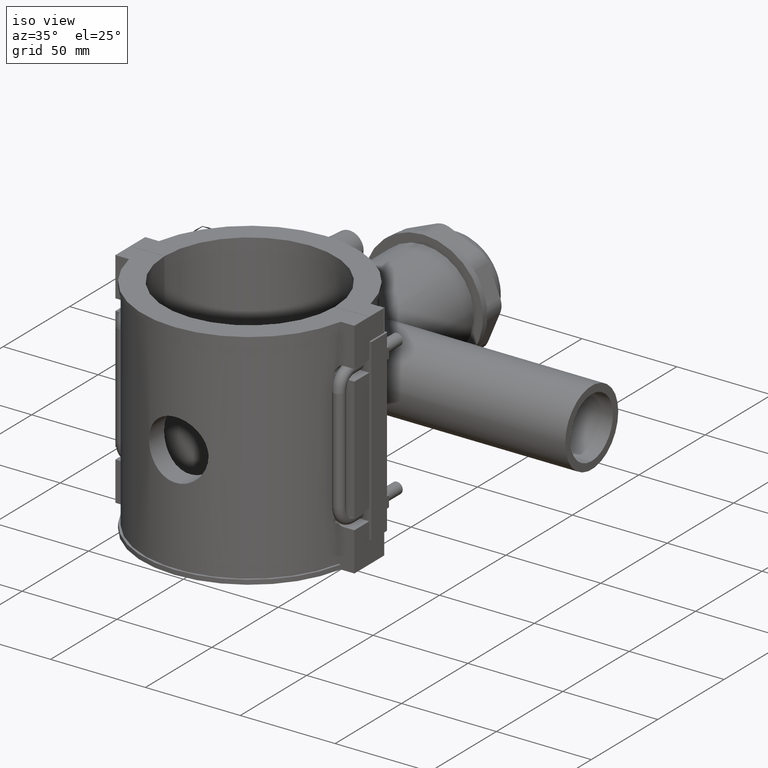
[diagram: clean part render]
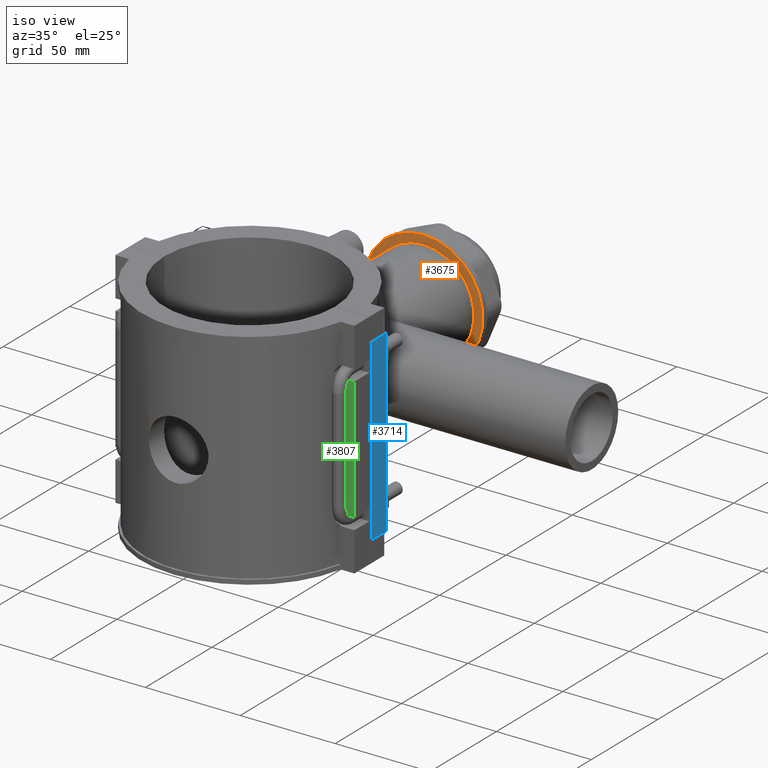
[diagram: same view with three faces highlighted in distinct colors, each labeled with its STEP entity id]
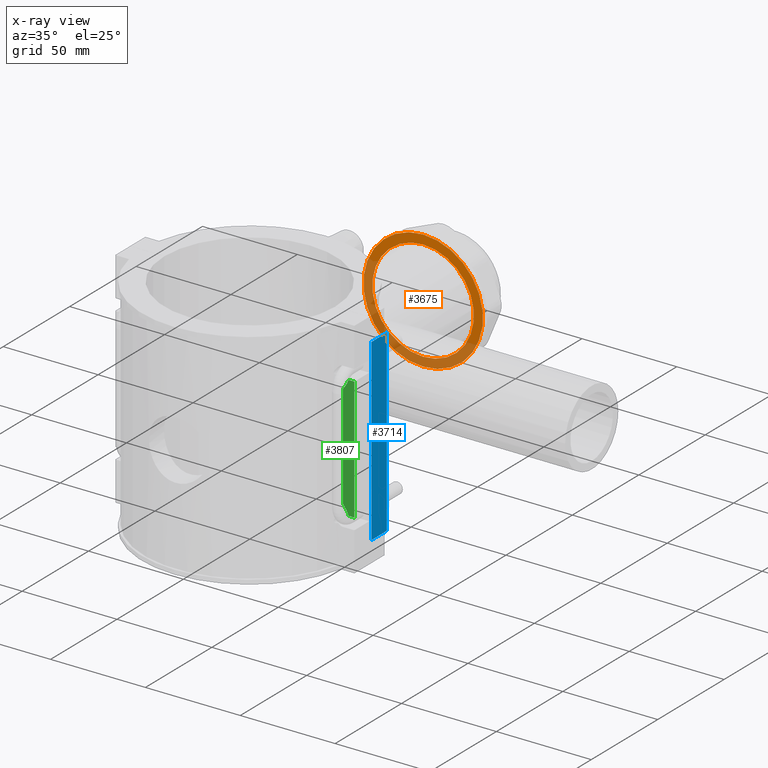
[diagram: x-ray of the same camera — body ghosted, the three highlighted faces saturated]
A machine part, iso view with three faces highlighted in distinct colors.
The next image is the same camera in x-ray (body ghosted, the three faces saturated) — at least one of them is partly hidden behind the body in this view.
Their STEP definitions:

[orange] entity #3675 — the highlighted planar face has unit normal (0, -1, -0).
#685=PLANE('',#3923);
#819=CIRCLE('',#3922,26.775);
#820=CIRCLE('',#3924,31.5);
#913=FACE_BOUND('',#1254,.T.);
#1021=FACE_OUTER_BOUND('',#1253,.T.);
#1253=EDGE_LOOP('',(#2758));
#1254=EDGE_LOOP('',(#2759));
#1666=VERTEX_POINT('',#6152);
#1667=VERTEX_POINT('',#6155);
#2077=EDGE_CURVE('',#1666,#1666,#819,.T.);
#2078=EDGE_CURVE('',#1667,#1667,#820,.T.);
#2758=ORIENTED_EDGE('',*,*,#2078,.F.);
#2759=ORIENTED_EDGE('',*,*,#2077,.T.);
#3675=ADVANCED_FACE('',(#1021,#913),#685,.T.);
#3922=AXIS2_PLACEMENT_3D('',#6153,#4400,#4401);
#3923=AXIS2_PLACEMENT_3D('',#6154,#4402,#4403);
#3924=AXIS2_PLACEMENT_3D('',#6156,#4404,#4405);
#4400=DIRECTION('center_axis',(0.,1.,3.06161699786838E-16));
#4401=DIRECTION('ref_axis',(1.,0.,0.));
#4402=DIRECTION('center_axis',(0.,-1.,-3.06161699786838E-16));
#4403=DIRECTION('ref_axis',(0.,0.,-1.));
#4404=DIRECTION('center_axis',(0.,1.,3.06161699786838E-16));
#4405=DIRECTION('ref_axis',(1.,0.,0.));
#6152=CARTESIAN_POINT('',(0.,130.5,26.775));
#6153=CARTESIAN_POINT('Origin',(0.,130.5,2.61768253317747E-14));
#6154=CARTESIAN_POINT('Origin',(0.,130.5,31.5));
#6155=CARTESIAN_POINT('',(0.,130.5,31.5));
#6156=CARTESIAN_POINT('Origin',(0.,130.5,2.61768253317747E-14));

[blue] entity #3714 — the highlighted planar face has unit normal (1, 0, 0).
#199=LINE('',#7184,#498);
#215=LINE('',#7255,#514);
#218=LINE('',#7261,#517);
#219=LINE('',#7262,#518);
#498=VECTOR('',#4604,94.4);
#514=VECTOR('',#4630,11.7000000000001);
#517=VECTOR('',#4635,11.7000000000001);
#518=VECTOR('',#4636,94.4);
#708=PLANE('',#3984);
#1060=FACE_OUTER_BOUND('',#1303,.T.);
#1303=EDGE_LOOP('',(#2998,#2999,#3000,#3001));
#1773=VERTEX_POINT('',#7181);
#1774=VERTEX_POINT('',#7183);
#1792=VERTEX_POINT('',#7254);
#1794=VERTEX_POINT('',#7260);
#2215=EDGE_CURVE('',#1773,#1774,#199,.T.);
#2238=EDGE_CURVE('',#1774,#1792,#215,.T.);
#2241=EDGE_CURVE('',#1794,#1773,#218,.T.);
#2242=EDGE_CURVE('',#1792,#1794,#219,.T.);
#2998=ORIENTED_EDGE('',*,*,#2215,.F.);
#2999=ORIENTED_EDGE('',*,*,#2241,.F.);
#3000=ORIENTED_EDGE('',*,*,#2242,.F.);
#3001=ORIENTED_EDGE('',*,*,#2238,.F.);
#3714=ADVANCED_FACE('',(#1060),#708,.T.);
#3984=AXIS2_PLACEMENT_3D('',#7259,#4633,#4634);
#4604=DIRECTION('',(0.,0.,-1.));
#4630=DIRECTION('',(0.,-1.,0.));
#4633=DIRECTION('center_axis',(1.,0.,0.));
#4634=DIRECTION('ref_axis',(0.,1.,0.));
#4635=DIRECTION('',(0.,1.,0.));
#4636=DIRECTION('',(0.,0.,1.));
#7181=CARTESIAN_POINT('',(64.,11.7500000000001,47.2));
#7183=CARTESIAN_POINT('',(64.,11.7500000000001,-47.2));
#7184=CARTESIAN_POINT('',(64.,11.7500000000001,0.));
#7254=CARTESIAN_POINT('',(64.,0.0500000000000078,-47.2));
#7255=CARTESIAN_POINT('',(64.,0.0500000000000078,-47.2));
#7259=CARTESIAN_POINT('Origin',(64.,0.0500000000000081,0.));
#7260=CARTESIAN_POINT('',(64.,0.0500000000000078,47.2));
#7261=CARTESIAN_POINT('',(64.,0.0500000000000078,47.2));
#7262=CARTESIAN_POINT('',(64.,0.0500000000000081,0.));

[green] entity #3807 — the highlighted planar face has unit normal (0, -1, 0).
#302=LINE('',#7995,#601);
#311=LINE('',#8045,#610);
#312=LINE('',#8047,#611);
#313=LINE('',#8048,#612);
#601=VECTOR('',#4977,54.7999999999999);
#610=VECTOR('',#5016,3.14744237747101);
#611=VECTOR('',#5017,64.8);
#612=VECTOR('',#5018,3.14744237747098);
#761=PLANE('',#4128);
#1153=FACE_OUTER_BOUND('',#1424,.T.);
#1424=EDGE_LOOP('',(#3398,#3399,#3400,#3401,#3402,#3403));
#1554=B_SPLINE_CURVE_WITH_KNOTS('',3,(#7849,#7850,#7851,#7852,#7853,#7854,
#7855,#7856,#7857,#7858),.UNSPECIFIED.,.F.,.F.,(4,2,2,2,4),(0.,0.205481085848633,
0.410962171697267,0.537973450419057,0.545999162035814),.UNSPECIFIED.);
#1560=B_SPLINE_CURVE_WITH_KNOTS('',3,(#7914,#7915,#7916,#7917,#7918,#7919,
#7920,#7921,#7922,#7923),.UNSPECIFIED.,.F.,.F.,(4,2,2,2,4),(1.76042393439612,
1.76844964601289,1.89546092473468,2.10094201058331,2.30642309643194),
 .UNSPECIFIED.);
#1880=VERTEX_POINT('',#7847);
#1881=VERTEX_POINT('',#7848);
#1887=VERTEX_POINT('',#7912);
#1888=VERTEX_POINT('',#7913);
#1907=VERTEX_POINT('',#8044);
#1908=VERTEX_POINT('',#8046);
#2382=EDGE_CURVE('',#1880,#1881,#1554,.T.);
#2391=EDGE_CURVE('',#1887,#1888,#1560,.T.);
#2403=EDGE_CURVE('',#1888,#1880,#302,.T.);
#2421=EDGE_CURVE('',#1881,#1907,#311,.T.);
#2422=EDGE_CURVE('',#1907,#1908,#312,.T.);
#2423=EDGE_CURVE('',#1908,#1887,#313,.T.);
#3398=ORIENTED_EDGE('',*,*,#2382,.T.);
#3399=ORIENTED_EDGE('',*,*,#2421,.T.);
#3400=ORIENTED_EDGE('',*,*,#2422,.T.);
#3401=ORIENTED_EDGE('',*,*,#2423,.T.);
#3402=ORIENTED_EDGE('',*,*,#2391,.T.);
#3403=ORIENTED_EDGE('',*,*,#2403,.T.);
#3807=ADVANCED_FACE('',(#1153),#761,.T.);
#4128=AXIS2_PLACEMENT_3D('',#8043,#5014,#5015);
#4977=DIRECTION('',(0.,0.,-1.));
#5014=DIRECTION('center_axis',(0.,-1.,0.));
#5015=DIRECTION('ref_axis',(1.,0.,0.));
#5016=DIRECTION('',(1.,0.,0.));
#5017=DIRECTION('',(0.,0.,1.));
#5018=DIRECTION('',(-1.,0.,0.));
#7847=CARTESIAN_POINT('',(57.,-11.25,-27.4));
#7848=CARTESIAN_POINT('',(59.852557622529,-11.25,-32.4));
#7849=CARTESIAN_POINT('Ctrl Pts',(57.,-11.25,-27.4));
#7850=CARTESIAN_POINT('Ctrl Pts',(57.4194365101018,-11.25,-27.9414902061386));
#7851=CARTESIAN_POINT('Ctrl Pts',(57.8820473191165,-11.25,-28.5365468681764));
#7852=CARTESIAN_POINT('Ctrl Pts',(58.729666362583,-11.25,-29.7738388291262));
#7853=CARTESIAN_POINT('Ctrl Pts',(59.110831203016,-11.25,-30.4187027022101));
#7854=CARTESIAN_POINT('Ctrl Pts',(59.5629019428147,-11.25,-31.430620884329));
#7855=CARTESIAN_POINT('Ctrl Pts',(59.7228163506988,-11.25,-31.8673367205852));
#7856=CARTESIAN_POINT('Ctrl Pts',(59.8392969713177,-11.25,-32.3433076247512));
#7857=CARTESIAN_POINT('Ctrl Pts',(59.846026798063,-11.25,-32.3716382239649));
#7858=CARTESIAN_POINT('Ctrl Pts',(59.852557622529,-11.25,-32.4));
#7912=CARTESIAN_POINT('',(59.852557622529,-11.25,32.4));
#7913=CARTESIAN_POINT('',(57.,-11.25,27.3999999999999));
#7914=CARTESIAN_POINT('Ctrl Pts',(59.852557622529,-11.25,32.4));
#7915=CARTESIAN_POINT('Ctrl Pts',(59.8460267980631,-11.25,32.3716382239649));
#7916=CARTESIAN_POINT('Ctrl Pts',(59.8392969713177,-11.25,32.3433076247511));
#7917=CARTESIAN_POINT('Ctrl Pts',(59.7228163506988,-11.25,31.867336720585));
#7918=CARTESIAN_POINT('Ctrl Pts',(59.5629019428147,-11.25,31.4306208843289));
#7919=CARTESIAN_POINT('Ctrl Pts',(59.110831203016,-11.25,30.41870270221));
#7920=CARTESIAN_POINT('Ctrl Pts',(58.729666362583,-11.25,29.7738388291261));
#7921=CARTESIAN_POINT('Ctrl Pts',(57.8820473191165,-11.25,28.5365468681763));
#7922=CARTESIAN_POINT('Ctrl Pts',(57.4194365101018,-11.25,27.9414902061385));
#7923=CARTESIAN_POINT('Ctrl Pts',(57.,-11.25,27.3999999999999));
#7995=CARTESIAN_POINT('',(57.,-11.25,27.3999999999999));
#8043=CARTESIAN_POINT('Origin',(54.6541626959923,-11.25,0.));
#8044=CARTESIAN_POINT('',(63.,-11.25,-32.4));
#8045=CARTESIAN_POINT('',(55.8149140115073,-11.25,-32.4));
#8046=CARTESIAN_POINT('',(63.,-11.25,32.4));
#8047=CARTESIAN_POINT('',(63.,-11.25,0.));
#8048=CARTESIAN_POINT('',(58.8270813479962,-11.25,32.4));